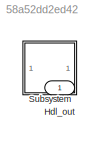
MODEL slx_58a52dd2ed42
KIND model
CONFIG AbsTol = auto
CONFIG EnableMultiTasking = off
CONFIG FixedStep = auto
CONFIG MaxStep = auto
CONFIG MinStep = auto
CONFIG RelTol = 1e-3
CONFIG SampleTimeConstraint = Unconstrained
CONFIG SolverName = VariableStepAuto
CONFIG StartTime = 0.0
CONFIG StopTime = 10.0
BLOCK [Outport] Hdl_out
  OutDataTypeStr = uint8
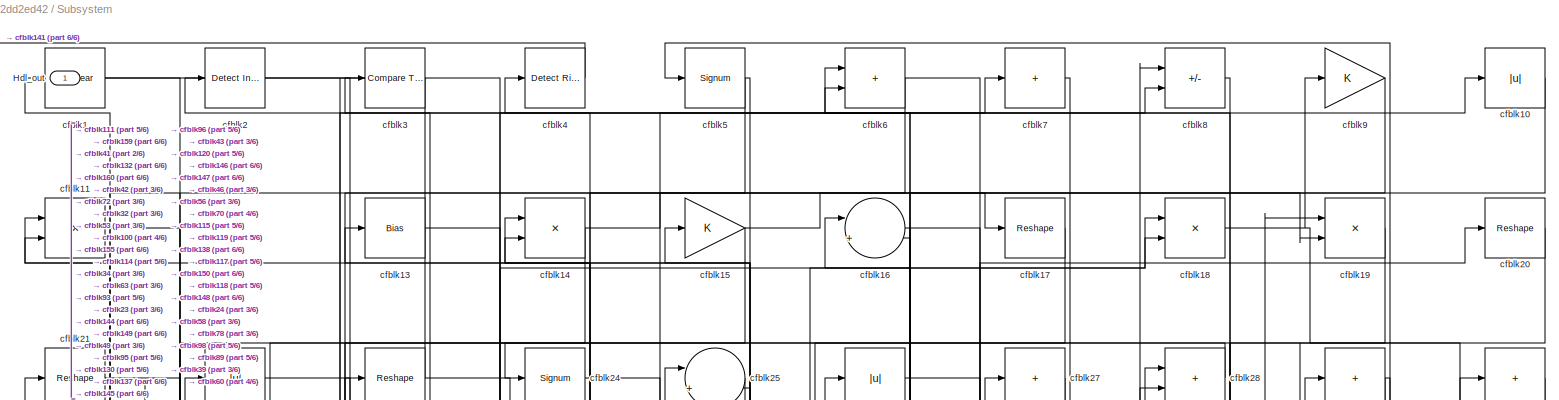
[diagram: Subsystem - part 1/6, full width, top band]
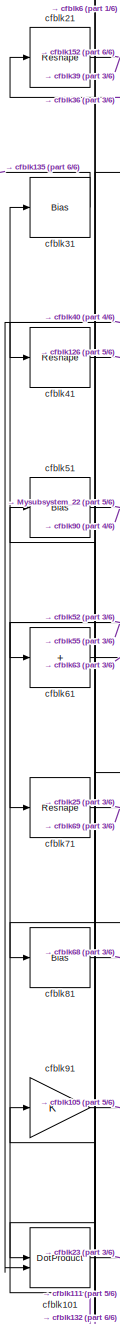
[diagram: Subsystem - part 2/6, middle left region]
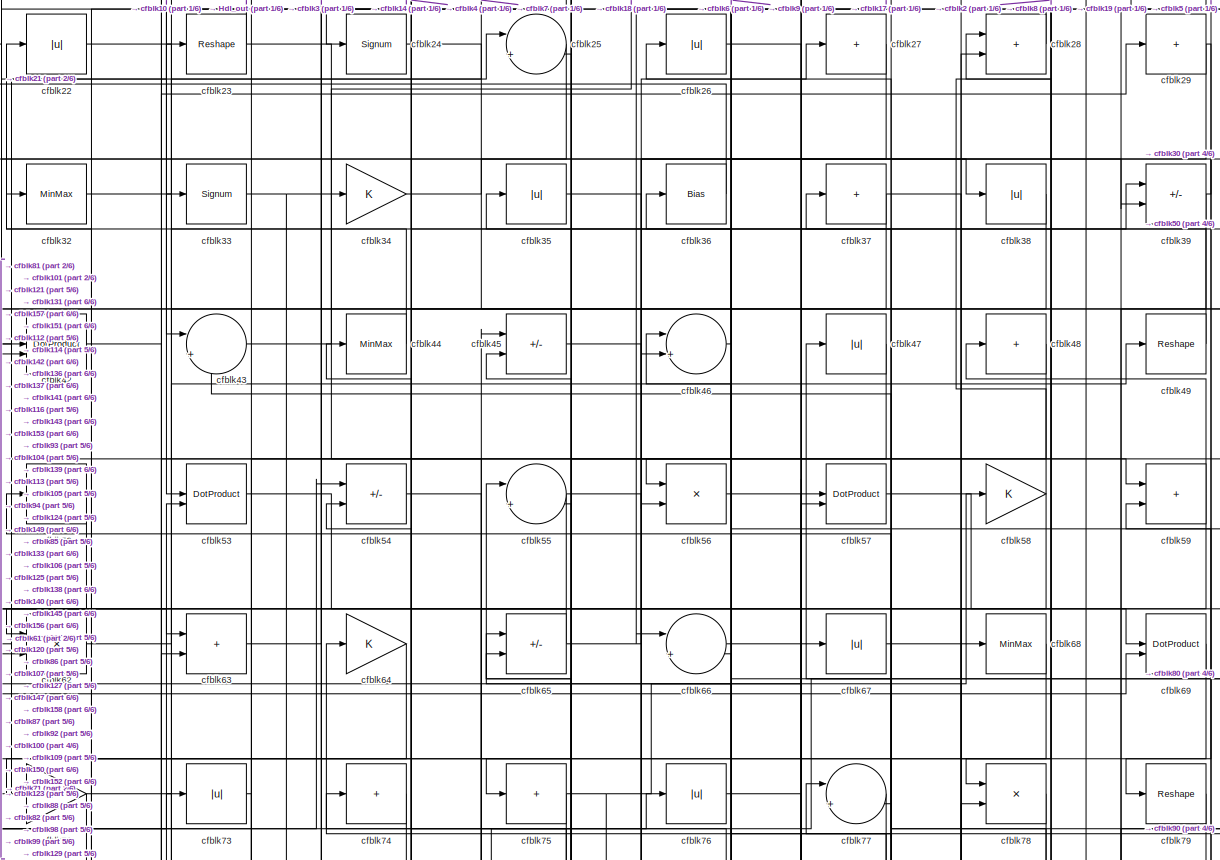
[diagram: Subsystem - part 3/6, full width, top band]
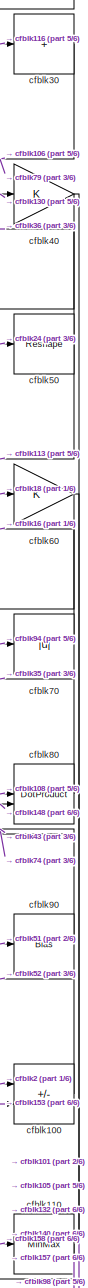
[diagram: Subsystem - part 4/6, middle right region]
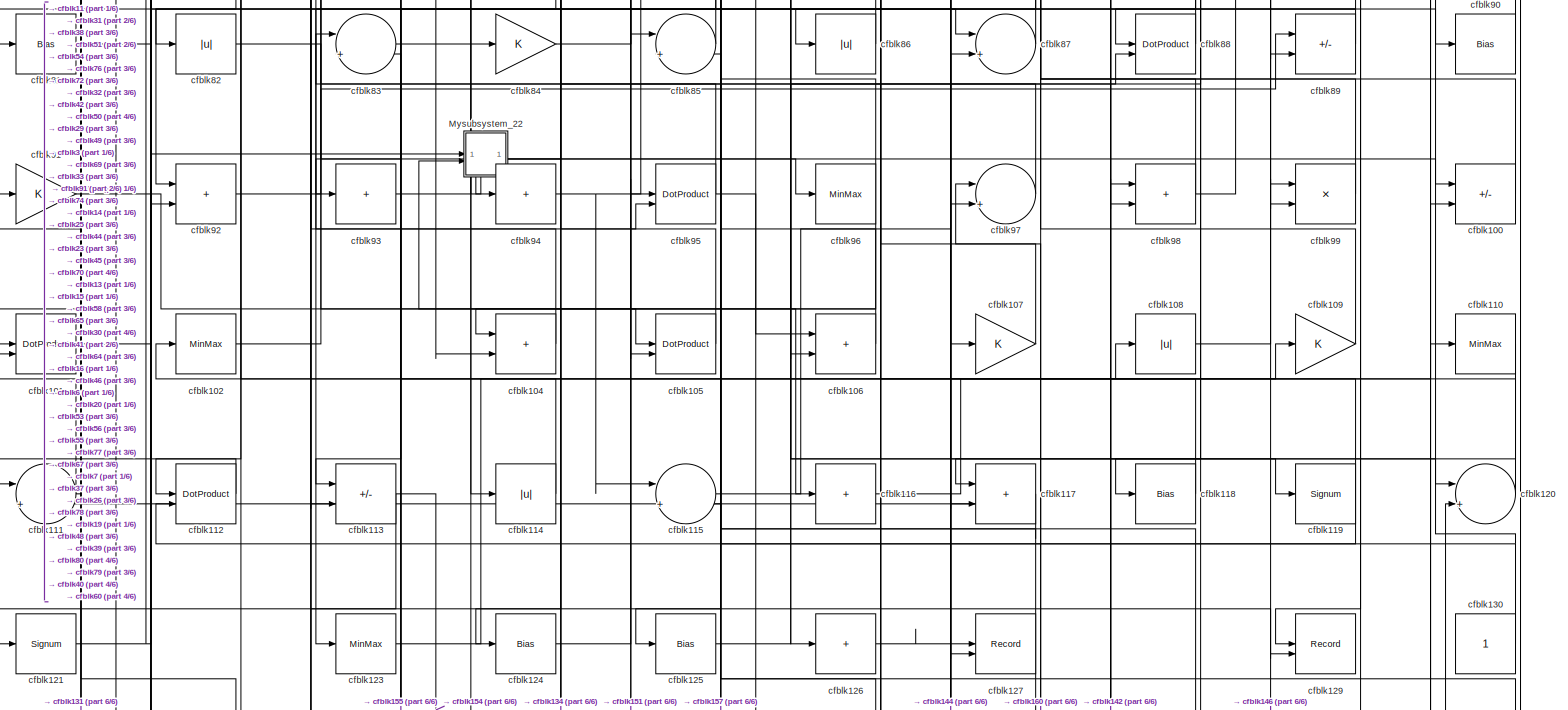
[diagram: Subsystem - part 5/6, full width, middle band]
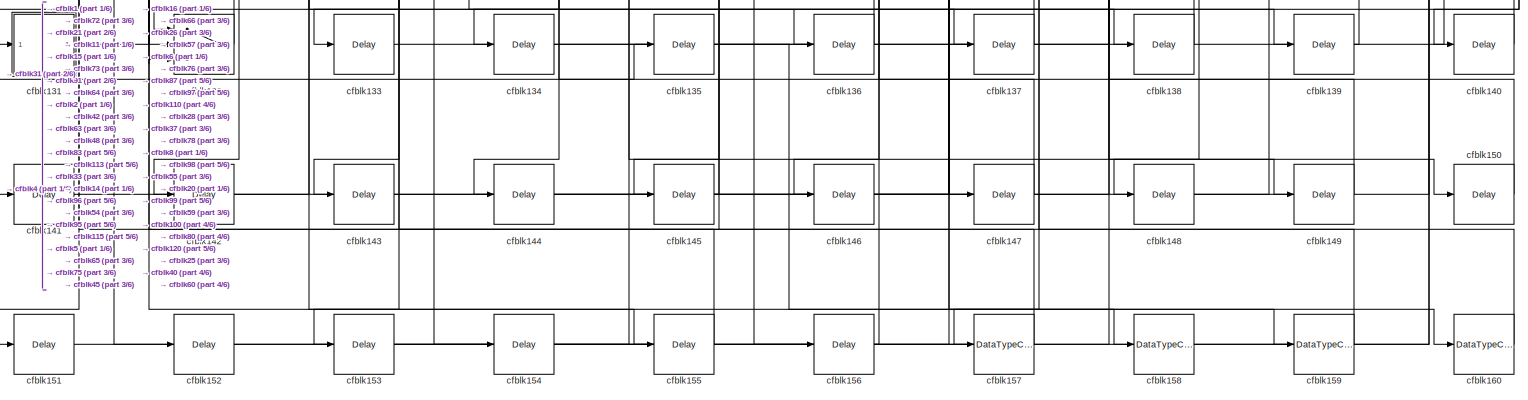
[diagram: Subsystem - part 6/6, full width, bottom band]
BLOCK [SubSystem] Subsystem
BLOCK [Outport] Subsystem/Hdl_out
  OutDataTypeStr = uint8
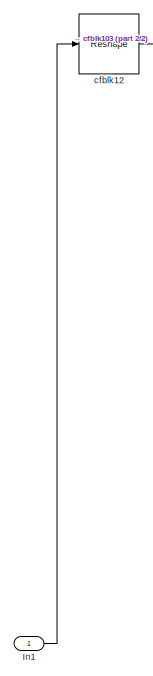
[diagram: Subsystem/Mysubsystem_22 - part 1/2, top left region]
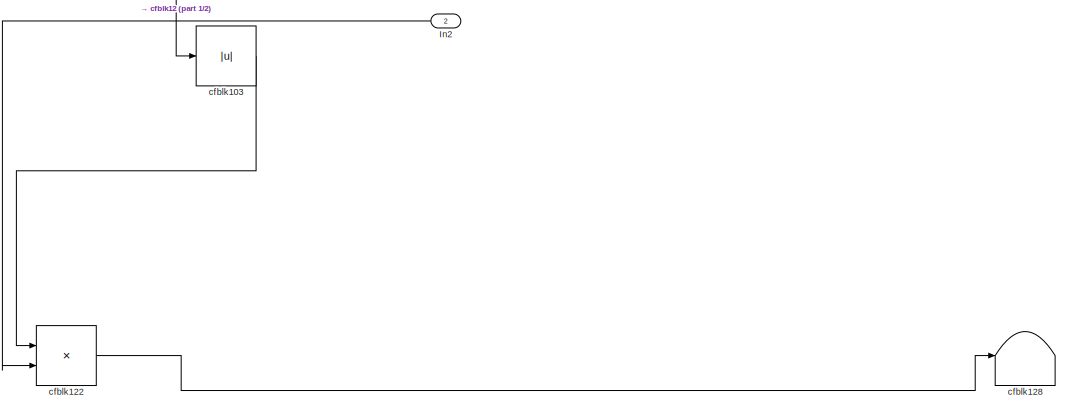
[diagram: Subsystem/Mysubsystem_22 - part 2/2, full width, bottom band]
BLOCK [SubSystem] Subsystem/Mysubsystem_22
  RTWFcnName = Mysubsystem_22
  RTWFcnNameOpts = User specified
  RTWFileNameOpts = Use function name
  RTWSystemCode = Reusable function
  TreatAsAtomicUnit = on
BLOCK [Inport] Subsystem/Mysubsystem_22/In1
BLOCK [Inport] Subsystem/Mysubsystem_22/In2
  Port = 2
BLOCK [Abs] Subsystem/Mysubsystem_22/cfblk103
  SaturateOnIntegerOverflow = off
BLOCK [Reshape] Subsystem/Mysubsystem_22/cfblk12
BLOCK [Product] Subsystem/Mysubsystem_22/cfblk122
  Inputs = */
  RndMeth = Zero
  SaturateOnIntegerOverflow = on
BLOCK [Terminator] Subsystem/Mysubsystem_22/cfblk128
BLOCK [Reference] Subsystem/cfblk1  REF=simulink/Logic and Bit
Operations/Bit Clear
  LibrarySourceBlock = hdlsllib/Logic and Bit\nOperations/Bit Clear
  SourceBlock = simulink/Logic and Bit\nOperations/Bit Clear
  SourceType = Bit Clear
BLOCK [Abs] Subsystem/cfblk10
  OutDataTypeStr = uint8
  SaturateOnIntegerOverflow = off
BLOCK [Sum] Subsystem/cfblk100
  IconShape = rectangular
  Inputs = +-
  OutDataTypeStr = uint8
BLOCK [DotProduct] Subsystem/cfblk101
  OutDataTypeStr = uint8
BLOCK [MinMax] Subsystem/cfblk102
  OutDataTypeStr = uint8
BLOCK [Sum] Subsystem/cfblk104
  IconShape = rectangular
  OutDataTypeStr = uint8
BLOCK [DotProduct] Subsystem/cfblk105
  OutDataTypeStr = uint8
BLOCK [Sum] Subsystem/cfblk106
  IconShape = rectangular
  OutDataTypeStr = uint8
BLOCK [Gain] Subsystem/cfblk107
  OutDataTypeStr = uint8
BLOCK [Abs] Subsystem/cfblk108
  OutDataTypeStr = uint8
  SaturateOnIntegerOverflow = off
BLOCK [Gain] Subsystem/cfblk109
  OutDataTypeStr = uint8
BLOCK [Product] Subsystem/cfblk11
  Inputs = */
  OutDataTypeStr = uint8
  RndMeth = Zero
  SaturateOnIntegerOverflow = on
BLOCK [MinMax] Subsystem/cfblk110
  OutDataTypeStr = uint8
BLOCK [Sum] Subsystem/cfblk111
  Inputs = |++
  OutDataTypeStr = uint8
BLOCK [DotProduct] Subsystem/cfblk112
  OutDataTypeStr = uint8
BLOCK [Sum] Subsystem/cfblk113
  IconShape = rectangular
  Inputs = +-
  OutDataTypeStr = uint8
BLOCK [Abs] Subsystem/cfblk114
  OutDataTypeStr = uint8
  SaturateOnIntegerOverflow = off
BLOCK [Sum] Subsystem/cfblk115
  Inputs = |++
  OutDataTypeStr = uint8
BLOCK [Sum] Subsystem/cfblk116
  IconShape = rectangular
  Inputs = +
  OutDataTypeStr = uint8
BLOCK [Sum] Subsystem/cfblk117
  IconShape = rectangular
  OutDataTypeStr = uint8
BLOCK [Bias] Subsystem/cfblk118
  Bias = 0.0
  SaturateOnIntegerOverflow = off
BLOCK [Signum] Subsystem/cfblk119
BLOCK [Sum] Subsystem/cfblk120
  Inputs = |++
  OutDataTypeStr = uint8
BLOCK [Signum] Subsystem/cfblk121
BLOCK [MinMax] Subsystem/cfblk123
  OutDataTypeStr = uint8
BLOCK [Bias] Subsystem/cfblk124
  Bias = 0.0
  SaturateOnIntegerOverflow = off
BLOCK [Bias] Subsystem/cfblk125
  Bias = 0.0
  SaturateOnIntegerOverflow = off
BLOCK [Sum] Subsystem/cfblk126
  IconShape = rectangular
  Inputs = +
  OutDataTypeStr = uint8
BLOCK [Record] Subsystem/cfblk127
  CompatibilityTag = XY
  FileSettingsInternal = {"entries":[{"content":{"excelSettings":{"content":{},"type":"Streamout.ExcelSettings"}},"type":"Streamout.FileSettingStorage","uuid":""}],"packageUris":["http:\/\/schema.mathworks.com\/mf0\/streamout_blocks\/R2020a"],"version":"1.0"}
  Layout = [1 1]
  SignalsInternal = {"entries":[{"content":{"signals":[{"content":{"blockPath":[],"dimensions":[1],"domain":"","lineColor":"#a2142f","plots":[1],"port":1,"signalID":47672,"signalName":"cfblk126"},"type":"RecordBlkView.Signal","uuid":""},{"content":{"blockPath":[],"dimensions":[1],"domain":"","lineColor":"#139fff","plots":[1],"port":2,"signalID":47675,"signalName":"cfblk56"},"type":"RecordBlkView.Signal","uuid":""}]},...<+143ch>
  VisualizationBindings = {"xyplotplugin":{"info":[{"series":[{"bindingParametersList":[{"parameter":"X-Axis","signalID":47672,"signalName":"cfblk126"},{"parameter":"Y-Axis","signalID":47675,"signalName":"cfblk56"}],"seriesID":19430}],"subplotID":1}]}}
  st = -1
BLOCK [Record] Subsystem/cfblk129
  CompatibilityTag = XY
  FileSettingsInternal = {"entries":[{"content":{"excelSettings":{"content":{},"type":"Streamout.ExcelSettings"}},"type":"Streamout.FileSettingStorage","uuid":""}],"packageUris":["http:\/\/schema.mathworks.com\/mf0\/streamout_blocks\/R2020a"],"version":"1.0"}
  Layout = [1 1]
  SignalsInternal = {"entries":[{"content":{"signals":[{"content":{"blockPath":[],"dimensions":[1],"domain":"","lineColor":"#a2142f","plots":[1],"port":1,"signalID":47664,"signalName":"cfblk29"},"type":"RecordBlkView.Signal","uuid":""},{"content":{"blockPath":[],"dimensions":[1],"domain":"","lineColor":"#139fff","plots":[1],"port":2,"signalID":47667,"signalName":"cfblk42"},"type":"RecordBlkView.Signal","uuid":""}]},"...<+142ch>
  VisualizationBindings = {"xyplotplugin":{"info":[{"series":[{"bindingParametersList":[{"parameter":"X-Axis","signalID":47664,"signalName":"cfblk29"},{"parameter":"Y-Axis","signalID":47667,"signalName":"cfblk42"}],"seriesID":22517}],"subplotID":1}]}}
  st = -1
BLOCK [Bias] Subsystem/cfblk13
  Bias = 0.0
  SaturateOnIntegerOverflow = off
BLOCK [Constant] Subsystem/cfblk130
  OutDataTypeStr = uint8
  SampleTime = -1
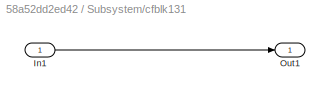
BLOCK [SubSystem] Subsystem/cfblk131
  LibrarySourceBlock = hdlsllib/Ports &\nSubsystems/Subsystem
BLOCK [Inport] Subsystem/cfblk131/In1
BLOCK [Outport] Subsystem/cfblk131/Out1
BLOCK [Switch] Subsystem/cfblk132
  InputSameDT = off
  OutDataTypeStr = uint8
  SaturateOnIntegerOverflow = off
BLOCK [Delay] Subsystem/cfblk133
  InputPortMap = u0
  SampleTime = 1
BLOCK [Delay] Subsystem/cfblk134
  InputPortMap = u0
  SampleTime = 1
BLOCK [Delay] Subsystem/cfblk135
  InputPortMap = u0
  SampleTime = 1
BLOCK [Delay] Subsystem/cfblk136
  InputPortMap = u0
  SampleTime = 1
BLOCK [Delay] Subsystem/cfblk137
  InputPortMap = u0
  SampleTime = 1
BLOCK [Delay] Subsystem/cfblk138
  InputPortMap = u0
  SampleTime = 1
BLOCK [Delay] Subsystem/cfblk139
  InputPortMap = u0
  SampleTime = 1
BLOCK [Product] Subsystem/cfblk14
  Inputs = */
  OutDataTypeStr = uint8
  RndMeth = Zero
  SaturateOnIntegerOverflow = on
BLOCK [Delay] Subsystem/cfblk140
  InputPortMap = u0
  SampleTime = 1
BLOCK [Delay] Subsystem/cfblk141
  InputPortMap = u0
  SampleTime = 1
BLOCK [Delay] Subsystem/cfblk142
  InputPortMap = u0
  SampleTime = 1
BLOCK [Delay] Subsystem/cfblk143
  InputPortMap = u0
  SampleTime = 1
BLOCK [Delay] Subsystem/cfblk144
  InputPortMap = u0
  SampleTime = 1
BLOCK [Delay] Subsystem/cfblk145
  InputPortMap = u0
  SampleTime = 1
BLOCK [Delay] Subsystem/cfblk146
  InputPortMap = u0
  SampleTime = 1
BLOCK [Delay] Subsystem/cfblk147
  InputPortMap = u0
  SampleTime = 1
BLOCK [Delay] Subsystem/cfblk148
  InputPortMap = u0
  SampleTime = 1
BLOCK [Delay] Subsystem/cfblk149
  InputPortMap = u0
  SampleTime = 1
BLOCK [Gain] Subsystem/cfblk15
  OutDataTypeStr = uint8
BLOCK [Delay] Subsystem/cfblk150
  InputPortMap = u0
  SampleTime = 1
BLOCK [Delay] Subsystem/cfblk151
  InputPortMap = u0
  SampleTime = 1
BLOCK [Delay] Subsystem/cfblk152
  InputPortMap = u0
  SampleTime = 1
BLOCK [Delay] Subsystem/cfblk153
  InputPortMap = u0
  SampleTime = 1
BLOCK [Delay] Subsystem/cfblk154
  InputPortMap = u0
  SampleTime = 1
BLOCK [Delay] Subsystem/cfblk155
  InputPortMap = u0
  SampleTime = 1
BLOCK [Delay] Subsystem/cfblk156
  InputPortMap = u0
  SampleTime = 1
BLOCK [DataTypeConversion] Subsystem/cfblk157
  OutDataTypeStr = uint8
  RndMeth = Floor
  SaturateOnIntegerOverflow = off
BLOCK [DataTypeConversion] Subsystem/cfblk158
  OutDataTypeStr = uint8
  RndMeth = Floor
  SaturateOnIntegerOverflow = off
BLOCK [DataTypeConversion] Subsystem/cfblk159
  OutDataTypeStr = uint8
  RndMeth = Floor
  SaturateOnIntegerOverflow = off
BLOCK [Sum] Subsystem/cfblk16
  Inputs = |++
  OutDataTypeStr = uint8
BLOCK [DataTypeConversion] Subsystem/cfblk160
  OutDataTypeStr = uint8
  RndMeth = Floor
  SaturateOnIntegerOverflow = off
BLOCK [Reshape] Subsystem/cfblk17
BLOCK [Product] Subsystem/cfblk18
  Inputs = */
  OutDataTypeStr = uint8
  RndMeth = Zero
  SaturateOnIntegerOverflow = on
BLOCK [Product] Subsystem/cfblk19
  Inputs = */
  OutDataTypeStr = uint8
  RndMeth = Zero
  SaturateOnIntegerOverflow = on
BLOCK [Reference] Subsystem/cfblk2  REF=simulink/Logic and Bit
Operations/Detect
Increase
  LibrarySourceBlock = hdlsllib/Logic and Bit\nOperations/Detect\nIncrease
  SourceBlock = simulink/Logic and Bit\nOperations/Detect\nIncrease
  SourceType = Detect Increase
BLOCK [Reshape] Subsystem/cfblk20
BLOCK [Reshape] Subsystem/cfblk21
BLOCK [Abs] Subsystem/cfblk22
  OutDataTypeStr = uint8
  SaturateOnIntegerOverflow = off
BLOCK [Reshape] Subsystem/cfblk23
BLOCK [Signum] Subsystem/cfblk24
BLOCK [Sum] Subsystem/cfblk25
  Inputs = |++
  OutDataTypeStr = uint8
BLOCK [Abs] Subsystem/cfblk26
  OutDataTypeStr = uint8
  SaturateOnIntegerOverflow = off
BLOCK [Sum] Subsystem/cfblk27
  IconShape = rectangular
  Inputs = +
  OutDataTypeStr = uint8
BLOCK [Sum] Subsystem/cfblk28
  IconShape = rectangular
  OutDataTypeStr = uint8
BLOCK [Sum] Subsystem/cfblk29
  IconShape = rectangular
  Inputs = +
  OutDataTypeStr = uint8
BLOCK [Reference] Subsystem/cfblk3  REF=hdlsllib/Logic and Bit
Operations/Compare
To Zero
  SourceBlock = hdlsllib/Logic and Bit\nOperations/Compare\nTo Zero
  SourceType = Compare To Zero
BLOCK [Sum] Subsystem/cfblk30
  IconShape = rectangular
  Inputs = +
  OutDataTypeStr = uint8
BLOCK [Bias] Subsystem/cfblk31
  Bias = 0.0
  SaturateOnIntegerOverflow = off
BLOCK [MinMax] Subsystem/cfblk32
  OutDataTypeStr = uint8
BLOCK [Signum] Subsystem/cfblk33
BLOCK [Gain] Subsystem/cfblk34
  OutDataTypeStr = uint8
BLOCK [Abs] Subsystem/cfblk35
  OutDataTypeStr = uint8
  SaturateOnIntegerOverflow = off
BLOCK [Bias] Subsystem/cfblk36
  Bias = 0.0
  SaturateOnIntegerOverflow = off
BLOCK [Sum] Subsystem/cfblk37
  IconShape = rectangular
  Inputs = +
  OutDataTypeStr = uint8
BLOCK [Abs] Subsystem/cfblk38
  OutDataTypeStr = uint8
  SaturateOnIntegerOverflow = off
BLOCK [Sum] Subsystem/cfblk39
  IconShape = rectangular
  Inputs = +-
  OutDataTypeStr = uint8
BLOCK [Reference] Subsystem/cfblk4  REF=hdlsllib/Logic and Bit
Operations/Detect Rise
Positive
  SourceBlock = hdlsllib/Logic and Bit\nOperations/Detect Rise\nPositive
  SourceType = Detect Rise Positive
BLOCK [Gain] Subsystem/cfblk40
  OutDataTypeStr = uint8
BLOCK [Reshape] Subsystem/cfblk41
BLOCK [DotProduct] Subsystem/cfblk42
  OutDataTypeStr = uint8
BLOCK [Sum] Subsystem/cfblk43
  Inputs = |++
  OutDataTypeStr = uint8
BLOCK [MinMax] Subsystem/cfblk44
  OutDataTypeStr = uint8
BLOCK [Sum] Subsystem/cfblk45
  IconShape = rectangular
  Inputs = +-
  OutDataTypeStr = uint8
BLOCK [Sum] Subsystem/cfblk46
  Inputs = |++
  OutDataTypeStr = uint8
BLOCK [Abs] Subsystem/cfblk47
  OutDataTypeStr = uint8
  SaturateOnIntegerOverflow = off
BLOCK [Sum] Subsystem/cfblk48
  IconShape = rectangular
  Inputs = +
  OutDataTypeStr = uint8
BLOCK [Reshape] Subsystem/cfblk49
BLOCK [Signum] Subsystem/cfblk5
BLOCK [Reshape] Subsystem/cfblk50
BLOCK [Bias] Subsystem/cfblk51
  Bias = 0.0
  SaturateOnIntegerOverflow = off
BLOCK [MinMax] Subsystem/cfblk52
  OutDataTypeStr = uint8
BLOCK [DotProduct] Subsystem/cfblk53
  OutDataTypeStr = uint8
BLOCK [Sum] Subsystem/cfblk54
  IconShape = rectangular
  Inputs = +-
  OutDataTypeStr = uint8
BLOCK [Sum] Subsystem/cfblk55
  Inputs = |++
  OutDataTypeStr = uint8
BLOCK [Product] Subsystem/cfblk56
  Inputs = */
  OutDataTypeStr = uint8
  RndMeth = Zero
  SaturateOnIntegerOverflow = on
BLOCK [DotProduct] Subsystem/cfblk57
  OutDataTypeStr = uint8
BLOCK [Gain] Subsystem/cfblk58
  OutDataTypeStr = uint8
BLOCK [Sum] Subsystem/cfblk59
  IconShape = rectangular
  OutDataTypeStr = uint8
BLOCK [Sum] Subsystem/cfblk6
  IconShape = rectangular
  OutDataTypeStr = uint8
BLOCK [Gain] Subsystem/cfblk60
  OutDataTypeStr = uint8
BLOCK [Sum] Subsystem/cfblk61
  IconShape = rectangular
  Inputs = +
  OutDataTypeStr = uint8
BLOCK [Product] Subsystem/cfblk62
  Inputs = */
  OutDataTypeStr = uint8
  RndMeth = Zero
  SaturateOnIntegerOverflow = on
BLOCK [Sum] Subsystem/cfblk63
  IconShape = rectangular
  OutDataTypeStr = uint8
BLOCK [Gain] Subsystem/cfblk64
  OutDataTypeStr = uint8
BLOCK [Sum] Subsystem/cfblk65
  IconShape = rectangular
  Inputs = +-
  OutDataTypeStr = uint8
BLOCK [Sum] Subsystem/cfblk66
  Inputs = |++
  OutDataTypeStr = uint8
BLOCK [Abs] Subsystem/cfblk67
  OutDataTypeStr = uint8
  SaturateOnIntegerOverflow = off
BLOCK [MinMax] Subsystem/cfblk68
  OutDataTypeStr = uint8
BLOCK [DotProduct] Subsystem/cfblk69
  OutDataTypeStr = uint8
BLOCK [Sum] Subsystem/cfblk7
  IconShape = rectangular
  Inputs = +
  OutDataTypeStr = uint8
BLOCK [Abs] Subsystem/cfblk70
  OutDataTypeStr = uint8
  SaturateOnIntegerOverflow = off
BLOCK [Reshape] Subsystem/cfblk71
BLOCK [Gain] Subsystem/cfblk72
  OutDataTypeStr = uint8
BLOCK [Abs] Subsystem/cfblk73
  OutDataTypeStr = uint8
  SaturateOnIntegerOverflow = off
BLOCK [Sum] Subsystem/cfblk74
  IconShape = rectangular
  Inputs = +
  OutDataTypeStr = uint8
BLOCK [Sum] Subsystem/cfblk75
  IconShape = rectangular
  Inputs = +
  OutDataTypeStr = uint8
BLOCK [Abs] Subsystem/cfblk76
  OutDataTypeStr = uint8
  SaturateOnIntegerOverflow = off
BLOCK [Sum] Subsystem/cfblk77
  Inputs = |++
  OutDataTypeStr = uint8
BLOCK [Product] Subsystem/cfblk78
  Inputs = */
  OutDataTypeStr = uint8
  RndMeth = Zero
  SaturateOnIntegerOverflow = on
BLOCK [Reshape] Subsystem/cfblk79
BLOCK [Sum] Subsystem/cfblk8
  IconShape = rectangular
  Inputs = +-
  OutDataTypeStr = uint8
BLOCK [DotProduct] Subsystem/cfblk80
  OutDataTypeStr = uint8
BLOCK [Bias] Subsystem/cfblk81
  Bias = 0.0
  SaturateOnIntegerOverflow = off
BLOCK [Abs] Subsystem/cfblk82
  OutDataTypeStr = uint8
  SaturateOnIntegerOverflow = off
BLOCK [Sum] Subsystem/cfblk83
  Inputs = |++
  OutDataTypeStr = uint8
BLOCK [Gain] Subsystem/cfblk84
  OutDataTypeStr = uint8
BLOCK [Sum] Subsystem/cfblk85
  Inputs = |++
  OutDataTypeStr = uint8
BLOCK [Abs] Subsystem/cfblk86
  OutDataTypeStr = uint8
  SaturateOnIntegerOverflow = off
BLOCK [Sum] Subsystem/cfblk87
  Inputs = |++
  OutDataTypeStr = uint8
BLOCK [DotProduct] Subsystem/cfblk88
  OutDataTypeStr = uint8
BLOCK [Sum] Subsystem/cfblk89
  IconShape = rectangular
  Inputs = +-
  OutDataTypeStr = uint8
BLOCK [Gain] Subsystem/cfblk9
  OutDataTypeStr = uint8
BLOCK [Bias] Subsystem/cfblk90
  Bias = 0.0
  SaturateOnIntegerOverflow = off
BLOCK [Gain] Subsystem/cfblk91
  OutDataTypeStr = uint8
BLOCK [Sum] Subsystem/cfblk92
  IconShape = rectangular
  OutDataTypeStr = uint8
BLOCK [Sum] Subsystem/cfblk93
  IconShape = rectangular
  Inputs = +
  OutDataTypeStr = uint8
BLOCK [Sum] Subsystem/cfblk94
  IconShape = rectangular
  Inputs = +
  OutDataTypeStr = uint8
BLOCK [DotProduct] Subsystem/cfblk95
  OutDataTypeStr = uint8
BLOCK [MinMax] Subsystem/cfblk96
  OutDataTypeStr = uint8
BLOCK [Sum] Subsystem/cfblk97
  Inputs = |++
  OutDataTypeStr = uint8
BLOCK [Sum] Subsystem/cfblk98
  IconShape = rectangular
  OutDataTypeStr = uint8
BLOCK [Product] Subsystem/cfblk99
  Inputs = */
  OutDataTypeStr = uint8
  RndMeth = Zero
  SaturateOnIntegerOverflow = on
LINE Subsystem/Mysubsystem_22/In1:1 -> Subsystem/Mysubsystem_22/cfblk12:1
LINE Subsystem/Mysubsystem_22/In2:1 -> Subsystem/Mysubsystem_22/cfblk122:2
LINE Subsystem/Mysubsystem_22/cfblk103:1 -> Subsystem/Mysubsystem_22/cfblk122:1
LINE Subsystem/Mysubsystem_22/cfblk122:1 -> Subsystem/Mysubsystem_22/cfblk128:1
LINE Subsystem/Mysubsystem_22/cfblk12:1 -> Subsystem/Mysubsystem_22/cfblk103:1
LINE Subsystem/cfblk100:1 -> Subsystem/cfblk52:1
NET Subsystem/cfblk101:1 -> Subsystem/cfblk23:1, Subsystem/cfblk51:1
LINE Subsystem/cfblk102:1 -> Subsystem/cfblk89:1
LINE Subsystem/cfblk104:1 -> Subsystem/cfblk53:2
LINE Subsystem/cfblk105:1 -> Subsystem/cfblk44:1
NET Subsystem/cfblk106:1 -> Subsystem/cfblk104:1, Subsystem/cfblk65:1
LINE Subsystem/cfblk107:1 -> Subsystem/cfblk46:1
LINE Subsystem/cfblk108:1 -> Subsystem/cfblk80:1
LINE Subsystem/cfblk109:1 -> Subsystem/cfblk67:1
LINE Subsystem/cfblk10:1 -> Subsystem/cfblk43:1
LINE Subsystem/cfblk110:1 -> Subsystem/cfblk157:1
NET Subsystem/cfblk111:1 -> Subsystem/cfblk11:1, Subsystem/cfblk31:1
LINE Subsystem/cfblk112:1 -> Subsystem/cfblk111:1
NET Subsystem/cfblk113:1 -> Subsystem/cfblk131:1, Subsystem/cfblk154:1
LINE Subsystem/cfblk114:1 -> Subsystem/cfblk32:1
NET Subsystem/cfblk115:1 -> Subsystem/cfblk20:1, Subsystem/cfblk85:2
LINE Subsystem/cfblk116:1 -> Subsystem/cfblk30:1
LINE Subsystem/cfblk117:1 -> Subsystem/cfblk111:2
LINE Subsystem/cfblk118:1 -> Subsystem/cfblk3:1
NET Subsystem/cfblk119:1 -> Subsystem/cfblk102:1, Subsystem/cfblk112:2
LINE Subsystem/cfblk11:1 -> Subsystem/cfblk132:2
NET Subsystem/cfblk120:1 -> Subsystem/cfblk108:1, Subsystem/cfblk6:2
NET Subsystem/cfblk121:1 -> Subsystem/cfblk54:1, Subsystem/cfblk76:1
LINE Subsystem/cfblk123:1 -> Subsystem/cfblk109:1
LINE Subsystem/cfblk124:1 -> Subsystem/cfblk45:1
LINE Subsystem/cfblk125:1 -> Subsystem/cfblk88:2
LINE Subsystem/cfblk126:1 -> Subsystem/cfblk127:1
NET Subsystem/cfblk130:1 -> Subsystem/cfblk15:1, Subsystem/cfblk40:1
LINE Subsystem/cfblk131/In1:1 -> Subsystem/cfblk131/Out1:1
LINE Subsystem/cfblk131:1 -> Subsystem/cfblk73:1
LINE Subsystem/cfblk132:1 -> Subsystem/cfblk91:1
LINE Subsystem/cfblk133:1 -> Subsystem/cfblk28:2
LINE Subsystem/cfblk134:1 -> Subsystem/cfblk120:2
LINE Subsystem/cfblk135:1 -> Subsystem/cfblk159:1
LINE Subsystem/cfblk136:1 -> Subsystem/cfblk45:2
LINE Subsystem/cfblk137:1 -> Subsystem/cfblk11:2
LINE Subsystem/cfblk138:1 -> Subsystem/cfblk55:2
LINE Subsystem/cfblk139:1 -> Subsystem/cfblk59:2
LINE Subsystem/cfblk13:1 -> Subsystem/cfblk114:1
LINE Subsystem/cfblk140:1 -> Subsystem/cfblk25:2
LINE Subsystem/cfblk141:1 -> Subsystem/cfblk63:2
LINE Subsystem/cfblk142:1 -> Subsystem/cfblk98:1
LINE Subsystem/cfblk143:1 -> Subsystem/cfblk57:1
LINE Subsystem/cfblk144:1 -> Subsystem/cfblk97:2
LINE Subsystem/cfblk145:1 -> Subsystem/cfblk65:2
LINE Subsystem/cfblk146:1 -> Subsystem/cfblk99:1
LINE Subsystem/cfblk147:1 -> Subsystem/cfblk16:2
LINE Subsystem/cfblk148:1 -> Subsystem/cfblk80:2
LINE Subsystem/cfblk149:1 -> Subsystem/cfblk14:2
NET Subsystem/cfblk14:1 -> Subsystem/cfblk19:2, Subsystem/cfblk72:1
LINE Subsystem/cfblk150:1 -> Subsystem/cfblk8:1
LINE Subsystem/cfblk151:1 -> Subsystem/cfblk95:1
LINE Subsystem/cfblk152:1 -> Subsystem/cfblk78:2
LINE Subsystem/cfblk153:1 -> Subsystem/cfblk100:2
LINE Subsystem/cfblk154:1 -> Subsystem/cfblk87:2
LINE Subsystem/cfblk155:1 -> Subsystem/cfblk83:2
LINE Subsystem/cfblk156:1 -> Subsystem/cfblk66:2
NET Subsystem/cfblk157:1 -> Subsystem/cfblk115:2, Subsystem/cfblk42:1
LINE Subsystem/cfblk158:1 -> Subsystem/cfblk110:1
LINE Subsystem/cfblk159:1 -> Subsystem/cfblk1:1
NET Subsystem/cfblk15:1 -> Subsystem/cfblk132:3, Subsystem/cfblk17:1
LINE Subsystem/cfblk160:1 -> Subsystem/cfblk97:1
NET Subsystem/cfblk16:1 -> Subsystem/cfblk119:1, Subsystem/cfblk146:1
LINE Subsystem/cfblk17:1 -> Subsystem/cfblk53:1
NET Subsystem/cfblk18:1 -> Subsystem/cfblk60:1, Subsystem/cfblk9:1
NET Subsystem/cfblk19:1 -> Subsystem/cfblk118:1, Subsystem/cfblk24:1
LINE Subsystem/cfblk1:1 -> Subsystem/cfblk160:1
NET Subsystem/cfblk20:1 -> Subsystem/cfblk148:1, Subsystem/cfblk89:2
NET Subsystem/cfblk21:1 -> Subsystem/cfblk152:1, Subsystem/cfblk39:2
LINE Subsystem/cfblk22:1 -> Subsystem/cfblk46:2
NET Subsystem/cfblk23:1 -> Subsystem/Hdl_out:1, Subsystem/cfblk85:1
LINE Subsystem/cfblk24:1 -> Subsystem/cfblk50:1
NET Subsystem/cfblk25:1 -> Subsystem/cfblk124:1, Subsystem/cfblk81:1
LINE Subsystem/cfblk26:1 -> Subsystem/cfblk147:1
LINE Subsystem/cfblk27:1 -> Subsystem/cfblk56:2
LINE Subsystem/cfblk28:1 -> Subsystem/cfblk66:1
NET Subsystem/cfblk29:1 -> Subsystem/cfblk129:1, Subsystem/cfblk86:1
NET Subsystem/cfblk2:1 -> Subsystem/cfblk100:1, Subsystem/cfblk155:1
NET Subsystem/cfblk30:1 -> Subsystem/cfblk106:2, Subsystem/cfblk79:1
LINE Subsystem/cfblk31:1 -> Subsystem/cfblk135:1
NET Subsystem/cfblk32:1 -> Subsystem/cfblk33:1, Subsystem/cfblk7:1, Subsystem/cfblk8:2
NET Subsystem/cfblk33:1 -> Subsystem/cfblk104:2, Subsystem/cfblk139:1
LINE Subsystem/cfblk34:1 -> Subsystem/cfblk38:1
LINE Subsystem/cfblk35:1 -> Subsystem/cfblk59:1
LINE Subsystem/cfblk36:1 -> Subsystem/cfblk21:1
NET Subsystem/cfblk37:1 -> Subsystem/cfblk150:1, Subsystem/cfblk94:1
LINE Subsystem/cfblk38:1 -> Subsystem/cfblk121:1
NET Subsystem/cfblk39:1 -> Subsystem/cfblk5:1, Subsystem/cfblk99:2
LINE Subsystem/cfblk3:1 -> Subsystem/cfblk34:1
NET Subsystem/cfblk40:1 -> Subsystem/cfblk101:2, Subsystem/cfblk132:1
LINE Subsystem/cfblk41:1 -> Subsystem/cfblk126:1
NET Subsystem/cfblk42:1 -> Subsystem/cfblk129:2, Subsystem/cfblk136:1, Subsystem/cfblk137:1
LINE Subsystem/cfblk43:1 -> Subsystem/cfblk18:1
LINE Subsystem/cfblk44:1 -> Subsystem/cfblk22:1
LINE Subsystem/cfblk45:1 -> Subsystem/cfblk120:1
LINE Subsystem/cfblk46:1 -> Subsystem/cfblk6:1
LINE Subsystem/cfblk47:1 -> Subsystem/cfblk75:1
LINE Subsystem/cfblk48:1 -> Subsystem/cfblk143:1
LINE Subsystem/cfblk49:1 -> Subsystem/cfblk4:1
LINE Subsystem/cfblk4:1 -> Subsystem/cfblk141:1
NET Subsystem/cfblk50:1 -> Subsystem/cfblk113:2, Subsystem/cfblk36:1
NET Subsystem/cfblk51:1 -> Subsystem/Mysubsystem_22:1, Subsystem/cfblk90:1
LINE Subsystem/cfblk52:1 -> Subsystem/cfblk61:1
LINE Subsystem/cfblk53:1 -> Subsystem/cfblk107:1
LINE Subsystem/cfblk54:1 -> Subsystem/cfblk149:1
NET Subsystem/cfblk55:1 -> Subsystem/cfblk117:2, Subsystem/cfblk71:1, Subsystem/cfblk92:2
LINE Subsystem/cfblk56:1 -> Subsystem/cfblk127:2
LINE Subsystem/cfblk57:1 -> Subsystem/cfblk69:1
NET Subsystem/cfblk58:1 -> Subsystem/cfblk125:1, Subsystem/cfblk2:1
NET Subsystem/cfblk59:1 -> Subsystem/cfblk28:1, Subsystem/cfblk62:2
NET Subsystem/cfblk5:1 -> Subsystem/cfblk144:1, Subsystem/cfblk145:1
NET Subsystem/cfblk60:1 -> Subsystem/cfblk105:2, Subsystem/cfblk140:1, Subsystem/cfblk98:2
LINE Subsystem/cfblk61:1 -> Subsystem/cfblk63:1
LINE Subsystem/cfblk62:1 -> Subsystem/cfblk39:1
LINE Subsystem/cfblk63:1 -> Subsystem/cfblk18:2
LINE Subsystem/cfblk64:1 -> Subsystem/cfblk142:1
NET Subsystem/cfblk65:1 -> Subsystem/cfblk27:1, Subsystem/cfblk62:1
LINE Subsystem/cfblk66:1 -> Subsystem/cfblk47:1
LINE Subsystem/cfblk67:1 -> Subsystem/cfblk58:1
LINE Subsystem/cfblk68:1 -> Subsystem/cfblk101:1
NET Subsystem/cfblk69:1 -> Subsystem/cfblk112:1, Subsystem/cfblk77:2, Subsystem/cfblk93:1
NET Subsystem/cfblk6:1 -> Subsystem/cfblk138:1, Subsystem/cfblk41:1, Subsystem/cfblk42:2
LINE Subsystem/cfblk70:1 -> Subsystem/cfblk16:1
NET Subsystem/cfblk71:1 -> Subsystem/cfblk25:1, Subsystem/cfblk69:2
NET Subsystem/cfblk72:1 -> Subsystem/cfblk116:1, Subsystem/cfblk151:1
LINE Subsystem/cfblk73:1 -> Subsystem/cfblk153:1
LINE Subsystem/cfblk74:1 -> Subsystem/cfblk113:1
NET Subsystem/cfblk75:1 -> Subsystem/cfblk133:1, Subsystem/cfblk156:1, Subsystem/cfblk57:2
LINE Subsystem/cfblk76:1 -> Subsystem/cfblk158:1
LINE Subsystem/cfblk77:1 -> Subsystem/cfblk92:1
LINE Subsystem/cfblk78:1 -> Subsystem/cfblk123:1
LINE Subsystem/cfblk79:1 -> Subsystem/cfblk82:1
LINE Subsystem/cfblk7:1 -> Subsystem/cfblk117:1
LINE Subsystem/cfblk80:1 -> Subsystem/cfblk35:1
LINE Subsystem/cfblk81:1 -> Subsystem/cfblk68:1
LINE Subsystem/cfblk82:1 -> Subsystem/cfblk48:1
LINE Subsystem/cfblk83:1 -> Subsystem/cfblk84:1
LINE Subsystem/cfblk84:1 -> Subsystem/cfblk87:1
LINE Subsystem/cfblk85:1 -> Subsystem/cfblk54:2
LINE Subsystem/cfblk86:1 -> Subsystem/cfblk64:1
LINE Subsystem/cfblk87:1 -> Subsystem/cfblk55:1
LINE Subsystem/cfblk88:1 -> Subsystem/cfblk26:1
LINE Subsystem/cfblk89:1 -> Subsystem/cfblk88:1
LINE Subsystem/cfblk8:1 -> Subsystem/cfblk78:1
NET Subsystem/cfblk90:1 -> Subsystem/cfblk43:2, Subsystem/cfblk74:1
LINE Subsystem/cfblk91:1 -> Subsystem/cfblk105:1
NET Subsystem/cfblk92:1 -> Subsystem/cfblk29:1, Subsystem/cfblk49:1, Subsystem/cfblk95:2
NET Subsystem/cfblk93:1 -> Subsystem/cfblk10:1, Subsystem/cfblk96:1
NET Subsystem/cfblk94:1 -> Subsystem/cfblk115:1, Subsystem/cfblk70:1
NET Subsystem/cfblk95:1 -> Subsystem/cfblk106:1, Subsystem/cfblk14:1
NET Subsystem/cfblk96:1 -> Subsystem/Mysubsystem_22:2, Subsystem/cfblk134:1, Subsystem/cfblk13:1
LINE Subsystem/cfblk97:1 -> Subsystem/cfblk83:1
NET Subsystem/cfblk98:1 -> Subsystem/cfblk19:1, Subsystem/cfblk77:1
LINE Subsystem/cfblk99:1 -> Subsystem/cfblk37:1
LINE Subsystem/cfblk9:1 -> Subsystem/cfblk56:1
note: NET lines group one-source signal fan-out (src -> all destinations, sorted); 1:1 wires keep LINE
